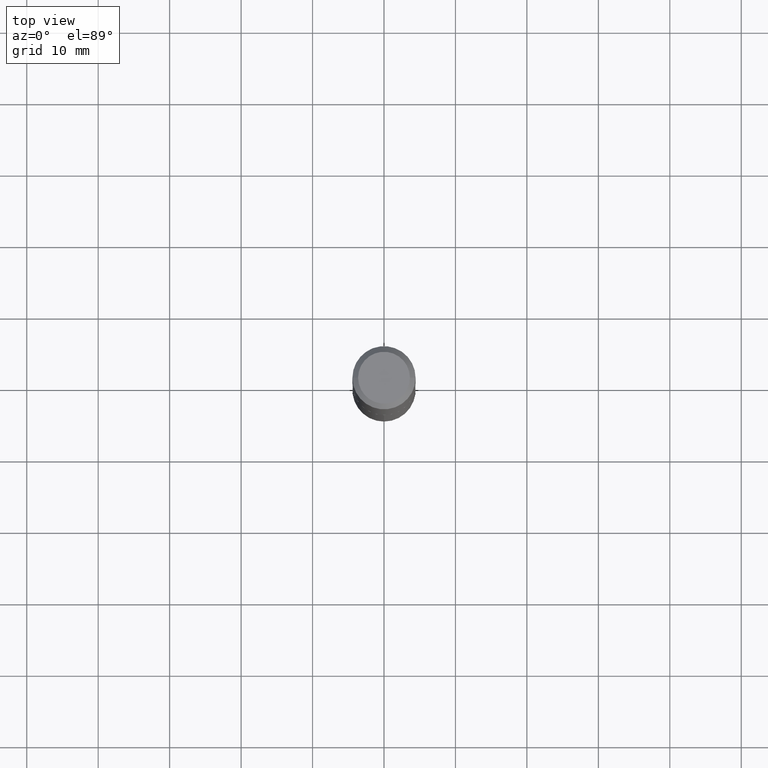
[diagram: clean part render]
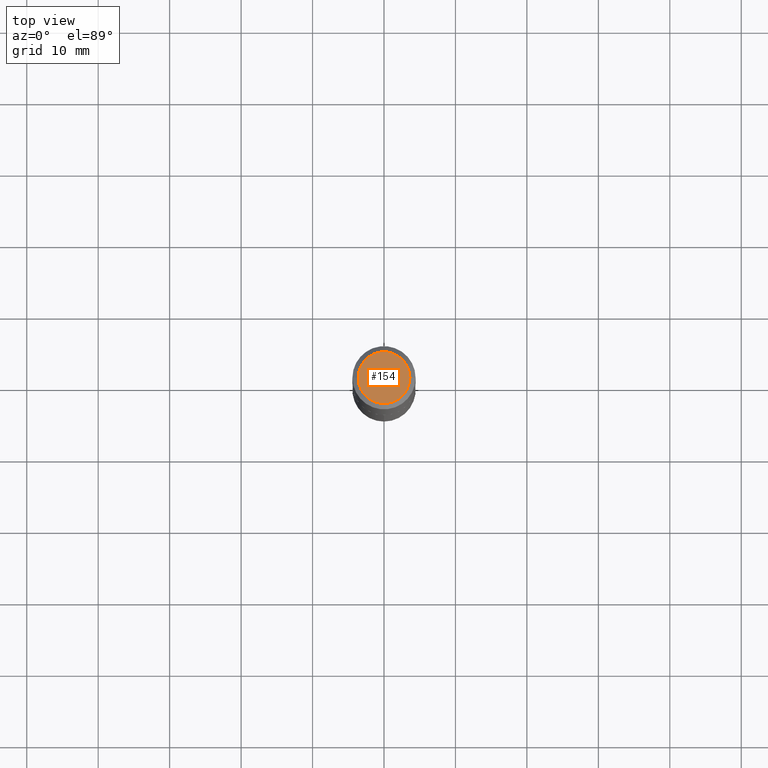
[diagram: same view with one face highlighted and labeled with its STEP entity id]
A machine part, top view. The second image highlights one B-rep face of the part: STEP entity #154.
In plain terms, the highlighted planar face has unit normal (0, -0, -1).
Its self-contained STEP definition (entity closure, byte-faithful):
#28 = ORIENTED_EDGE ( 'NONE', *, *, #268, .T. ) ;
#46 = DIRECTION ( 'NONE',  ( -1.000000000000000000, 6.982962677686265922E-15, -4.876176775795935793E-29 ) ) ;
#50 = AXIS2_PLACEMENT_3D ( 'NONE', #266, #377, #350 ) ;
#68 = VERTEX_POINT ( 'NONE', #161 ) ;
#75 = CARTESIAN_POINT ( 'NONE',  ( -6.289154646409587262E-48, 8.979246036383646749E-34, 2.571758278209442396E-19 ) ) ;
#85 = EDGE_CURVE ( 'NONE', #68, #289, #234, .T. ) ;
#143 = AXIS2_PLACEMENT_3D ( 'NONE', #75, #352, #303 ) ;
#149 = ORIENTED_EDGE ( 'NONE', *, *, #85, .T. ) ;
#154 = ADVANCED_FACE ( 'NONE', ( #345 ), #184, .F. ) ;
#161 = CARTESIAN_POINT ( 'NONE',  ( 0.1427499999999999603, -1.141085766316490663E-15, 2.571758278284192552E-19 ) ) ;
#170 = EDGE_LOOP ( 'NONE', ( #28, #149 ) ) ;
#176 = AXIS2_PLACEMENT_3D ( 'NONE', #294, #260, #46 ) ;
#184 = PLANE ( 'NONE',  #176 ) ;
#234 = CIRCLE ( 'NONE', #50, 0.1427499999999999603 ) ;
#259 = CIRCLE ( 'NONE', #143, 0.1427499999999999603 ) ;
#260 = DIRECTION ( 'NONE',  ( 2.438088387897960049E-29, -3.491481338843145188E-15, -1.000000000000000000 ) ) ;
#266 = CARTESIAN_POINT ( 'NONE',  ( -6.289154646409587262E-48, 8.979246036383646749E-34, 2.571758278209442396E-19 ) ) ;
#268 = EDGE_CURVE ( 'NONE', #289, #68, #259, .T. ) ;
#289 = VERTEX_POINT ( 'NONE', #301 ) ;
#294 = CARTESIAN_POINT ( 'NONE',  ( -3.144577323204793631E-48, 4.489623018191823374E-34, 1.285879139104721198E-19 ) ) ;
#301 = CARTESIAN_POINT ( 'NONE',  ( -0.1427499999999999603, 1.051372318159137798E-15, 2.571758278137824765E-19 ) ) ;
#303 = DIRECTION ( 'NONE',  ( 1.000000000000000000, -6.982962677686265922E-15, 4.876170438487578859E-29 ) ) ;
#345 = FACE_OUTER_BOUND ( 'NONE', #170, .T. ) ;
#350 = DIRECTION ( 'NONE',  ( 1.000000000000000000, -6.982962677686265922E-15, 4.876170438487578859E-29 ) ) ;
#352 = DIRECTION ( 'NONE',  ( -2.445468806185136597E-29, 3.491481338843145583E-15, 1.000000000000000000 ) ) ;
#377 = DIRECTION ( 'NONE',  ( -2.445468806185136597E-29, 3.491481338843145583E-15, 1.000000000000000000 ) ) ;